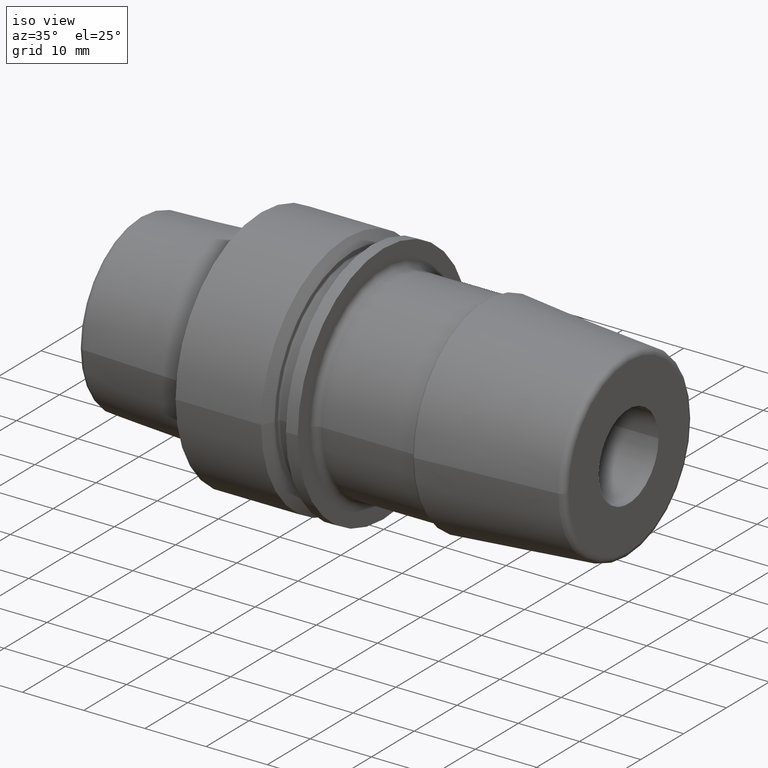
[diagram: clean part render]
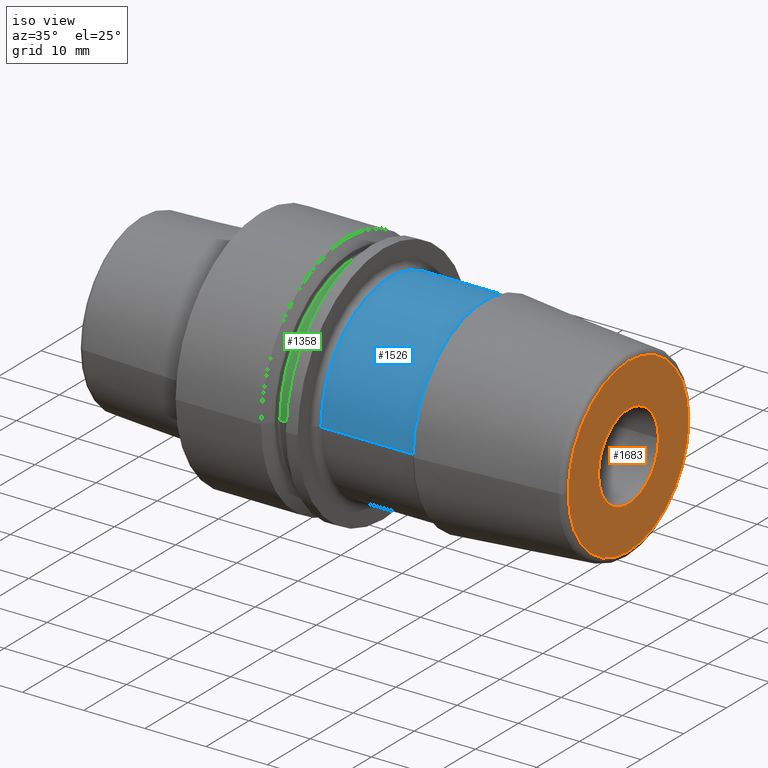
[diagram: same view with three faces highlighted in distinct colors, each labeled with its STEP entity id]
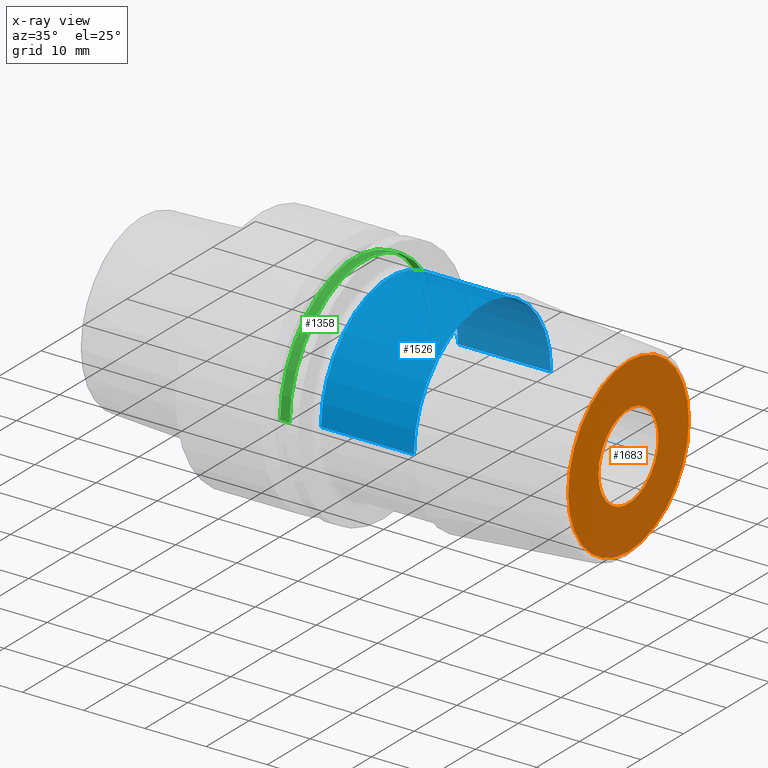
[diagram: x-ray of the same camera — body ghosted, the three highlighted faces saturated]
A machine part, iso view with three faces highlighted in distinct colors.
The next image is the same camera in x-ray (body ghosted, the three faces saturated) — at least one of them is partly hidden behind the body in this view.
Their STEP definitions:

[orange] entity #1683 — the highlighted planar face has unit normal (1, 0, 0).
#590=CARTESIAN_POINT('',(6.E1,0.E0,0.E0));
#591=DIRECTION('',(-1.E0,0.E0,0.E0));
#592=DIRECTION('',(0.E0,1.E0,0.E0));
#593=AXIS2_PLACEMENT_3D('',#590,#591,#592);
#595=CARTESIAN_POINT('',(6.E1,0.E0,0.E0));
#596=DIRECTION('',(-1.E0,0.E0,0.E0));
#597=DIRECTION('',(0.E0,-1.E0,0.E0));
#598=AXIS2_PLACEMENT_3D('',#595,#596,#597);
#600=CARTESIAN_POINT('',(6.E1,0.E0,0.E0));
#601=DIRECTION('',(-1.E0,0.E0,0.E0));
#602=DIRECTION('',(0.E0,-1.E0,0.E0));
#603=AXIS2_PLACEMENT_3D('',#600,#601,#602);
#605=CARTESIAN_POINT('',(6.E1,0.E0,0.E0));
#606=DIRECTION('',(-1.E0,0.E0,0.E0));
#607=DIRECTION('',(0.E0,1.E0,0.E0));
#608=AXIS2_PLACEMENT_3D('',#605,#606,#607);
#740=CARTESIAN_POINT('',(6.E1,1.407560950834E1,0.E0));
#741=CARTESIAN_POINT('',(6.E1,-1.407560950834E1,0.E0));
#742=VERTEX_POINT('',#740);
#743=VERTEX_POINT('',#741);
#752=CARTESIAN_POINT('',(6.E1,-7.E0,0.E0));
#753=CARTESIAN_POINT('',(6.E1,7.E0,0.E0));
#754=VERTEX_POINT('',#752);
#755=VERTEX_POINT('',#753);
#1668=CARTESIAN_POINT('',(6.E1,0.E0,0.E0));
#1669=DIRECTION('',(1.E0,0.E0,0.E0));
#1670=DIRECTION('',(0.E0,-1.E0,0.E0));
#1671=AXIS2_PLACEMENT_3D('',#1668,#1669,#1670);
#1672=PLANE('',#1671);
#1673=ORIENTED_EDGE('',*,*,#1650,.T.);
#1674=ORIENTED_EDGE('',*,*,#1635,.T.);
#1675=EDGE_LOOP('',(#1673,#1674));
#1676=FACE_OUTER_BOUND('',#1675,.F.);
#1678=ORIENTED_EDGE('',*,*,#1677,.F.);
#1680=ORIENTED_EDGE('',*,*,#1679,.F.);
#1681=EDGE_LOOP('',(#1678,#1680));
#1682=FACE_BOUND('',#1681,.F.);
#1683=ADVANCED_FACE('',(#1676,#1682),#1672,.T.);
#594=CIRCLE('',#593,1.407560950834E1);
#599=CIRCLE('',#598,1.407560950834E1);
#604=CIRCLE('',#603,7.E0);
#609=CIRCLE('',#608,7.E0);
#1635=EDGE_CURVE('',#743,#742,#599,.T.);
#1650=EDGE_CURVE('',#742,#743,#594,.T.);
#1677=EDGE_CURVE('',#754,#755,#604,.T.);
#1679=EDGE_CURVE('',#755,#754,#609,.T.);

[blue] entity #1526 — the highlighted cylindrical surface (partial cylindrical patch) has radius 16 mm, axis along (1, 0, 0).
#484=CARTESIAN_POINT('',(2.095E1,0.E0,0.E0));
#485=DIRECTION('',(1.E0,0.E0,0.E0));
#486=DIRECTION('',(0.E0,1.E0,0.E0));
#487=AXIS2_PLACEMENT_3D('',#484,#485,#486);
#489=CARTESIAN_POINT('',(3.615E1,0.E0,0.E0));
#490=DIRECTION('',(1.E0,0.E0,0.E0));
#491=DIRECTION('',(0.E0,1.E0,0.E0));
#492=AXIS2_PLACEMENT_3D('',#489,#490,#491);
#499=DIRECTION('',(-1.E0,0.E0,-2.927688245344E-14));
#500=VECTOR('',#499,1.52E1);
#501=CARTESIAN_POINT('',(3.615E1,-1.6E1,8.042324969494E-14));
#502=LINE('',#501,#500);
#508=DIRECTION('',(-1.E0,0.E0,2.939671532514E-14));
#509=VECTOR('',#508,1.52E1);
#510=CARTESIAN_POINT('',(3.615E1,1.6E1,-8.273803751132E-14));
#511=LINE('',#510,#509);
#760=CARTESIAN_POINT('',(2.095E1,-1.6E1,0.E0));
#761=CARTESIAN_POINT('',(2.095E1,1.6E1,0.E0));
#762=VERTEX_POINT('',#760);
#763=VERTEX_POINT('',#761);
#764=CARTESIAN_POINT('',(3.615E1,-1.6E1,0.E0));
#765=CARTESIAN_POINT('',(3.615E1,1.6E1,0.E0));
#766=VERTEX_POINT('',#764);
#767=VERTEX_POINT('',#765);
#1512=CARTESIAN_POINT('',(1.79475E1,0.E0,0.E0));
#1513=DIRECTION('',(1.E0,0.E0,0.E0));
#1514=DIRECTION('',(0.E0,-1.E0,0.E0));
#1515=AXIS2_PLACEMENT_3D('',#1512,#1513,#1514);
#1516=CYLINDRICAL_SURFACE('',#1515,1.6E1);
#1517=ORIENTED_EDGE('',*,*,#1506,.F.);
#1519=ORIENTED_EDGE('',*,*,#1518,.F.);
#1521=ORIENTED_EDGE('',*,*,#1520,.T.);
#1523=ORIENTED_EDGE('',*,*,#1522,.T.);
#1524=EDGE_LOOP('',(#1517,#1519,#1521,#1523));
#1525=FACE_OUTER_BOUND('',#1524,.F.);
#1526=ADVANCED_FACE('',(#1525),#1516,.T.);
#488=CIRCLE('',#487,1.6E1);
#493=CIRCLE('',#492,1.6E1);
#1506=EDGE_CURVE('',#763,#762,#488,.T.);
#1518=EDGE_CURVE('',#767,#763,#511,.T.);
#1520=EDGE_CURVE('',#767,#766,#493,.T.);
#1522=EDGE_CURVE('',#766,#762,#502,.T.);

[green] entity #1358 — the highlighted cylindrical surface (partial cylindrical patch) has radius 17.375 mm, axis along (1, 0, 0).
#372=CARTESIAN_POINT('',(1.67875E1,0.E0,0.E0));
#373=DIRECTION('',(1.E0,0.E0,0.E0));
#374=DIRECTION('',(0.E0,1.E0,0.E0));
#375=AXIS2_PLACEMENT_3D('',#372,#373,#374);
#377=CARTESIAN_POINT('',(1.52125E1,0.E0,0.E0));
#378=DIRECTION('',(1.E0,0.E0,0.E0));
#379=DIRECTION('',(0.E0,1.E0,0.E0));
#380=AXIS2_PLACEMENT_3D('',#377,#378,#379);
#382=DIRECTION('',(1.E0,0.E0,0.E0));
#383=VECTOR('',#382,1.575E0);
#384=CARTESIAN_POINT('',(1.52125E1,-1.7375E1,0.E0));
#385=LINE('',#384,#383);
#386=DIRECTION('',(-1.E0,0.E0,0.E0));
#387=VECTOR('',#386,1.575E0);
#388=CARTESIAN_POINT('',(1.67875E1,1.7375E1,0.E0));
#389=LINE('',#388,#387);
#669=CARTESIAN_POINT('',(1.52125E1,1.7375E1,0.E0));
#671=VERTEX_POINT('',#669);
#672=CARTESIAN_POINT('',(1.67875E1,1.7375E1,0.E0));
#674=VERTEX_POINT('',#672);
#677=CARTESIAN_POINT('',(1.52125E1,-1.7375E1,0.E0));
#679=VERTEX_POINT('',#677);
#680=CARTESIAN_POINT('',(1.67875E1,-1.7375E1,0.E0));
#682=VERTEX_POINT('',#680);
#1344=CARTESIAN_POINT('',(1.376132433122E1,0.E0,0.E0));
#1345=DIRECTION('',(1.E0,0.E0,0.E0));
#1346=DIRECTION('',(0.E0,-1.E0,0.E0));
#1347=AXIS2_PLACEMENT_3D('',#1344,#1345,#1346);
#1348=CYLINDRICAL_SURFACE('',#1347,1.7375E1);
#1350=ORIENTED_EDGE('',*,*,#1349,.F.);
#1351=ORIENTED_EDGE('',*,*,#1339,.T.);
#1353=ORIENTED_EDGE('',*,*,#1352,.F.);
#1355=ORIENTED_EDGE('',*,*,#1354,.F.);
#1356=EDGE_LOOP('',(#1350,#1351,#1353,#1355));
#1357=FACE_OUTER_BOUND('',#1356,.F.);
#1358=ADVANCED_FACE('',(#1357),#1348,.T.);
#376=CIRCLE('',#375,1.7375E1);
#381=CIRCLE('',#380,1.7375E1);
#1339=EDGE_CURVE('',#674,#682,#376,.T.);
#1349=EDGE_CURVE('',#674,#671,#389,.T.);
#1352=EDGE_CURVE('',#679,#682,#385,.T.);
#1354=EDGE_CURVE('',#671,#679,#381,.T.);